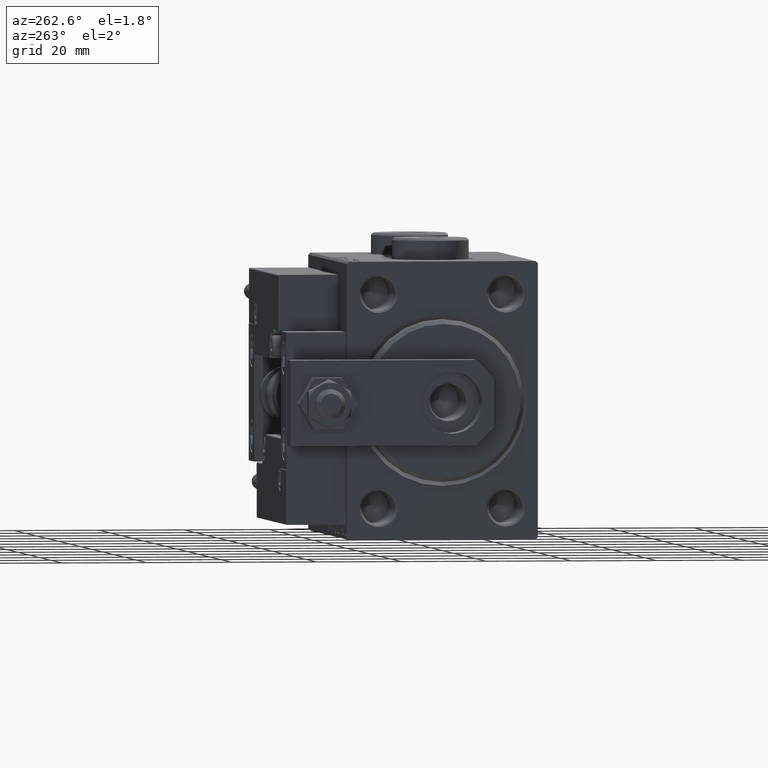
[diagram: clean part render]
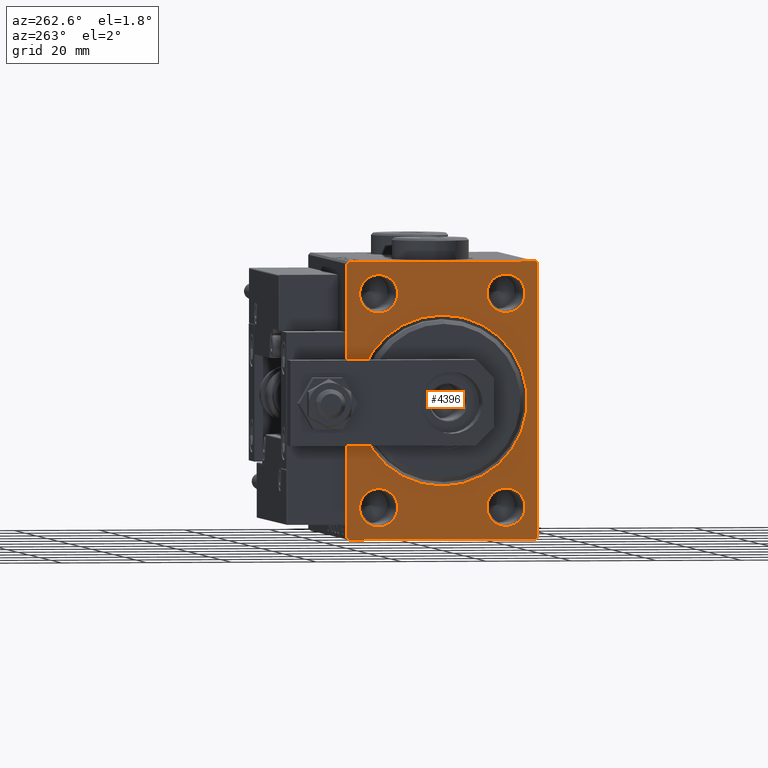
[diagram: same view with one face highlighted and labeled with its STEP entity id]
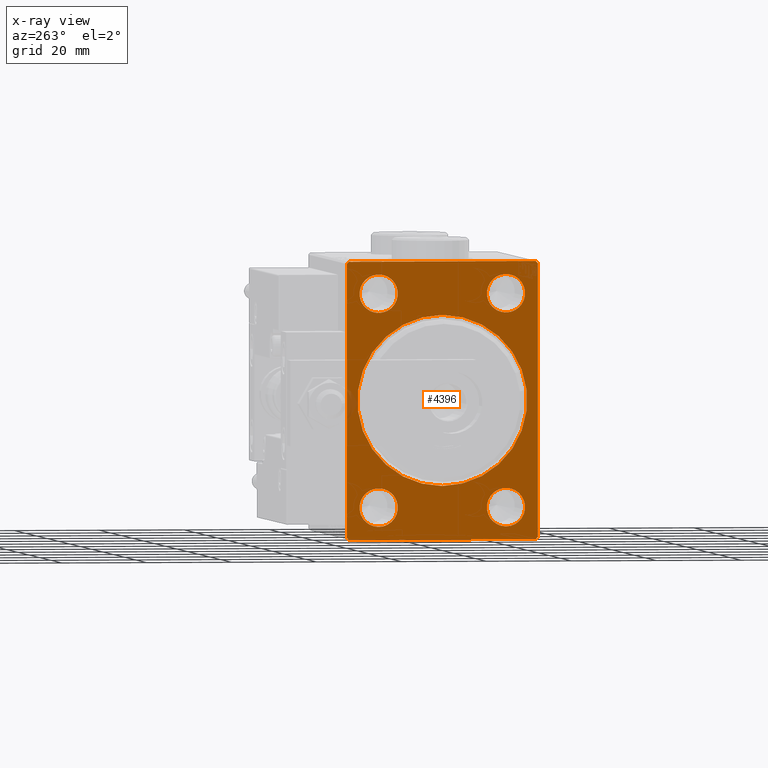
[diagram: x-ray of the same camera — body ghosted, the highlighted face saturated]
A machine part, auxiliary view. The second image highlights one B-rep face of the part: STEP entity #4396.
The next image is the same camera in x-ray: the body ghosted, the highlighted face saturated — about 1% of this face is hidden behind the body in this view.
In plain terms, the highlighted planar face has unit normal (1, 0, 0).
Its self-contained STEP definition (entity closure, byte-faithful):
#219 = DIRECTION ( 'NONE',  ( 0.000000000000000000, -0.7071067811865376918, -0.7071067811865574537 ) ) ;
#305 = VERTEX_POINT ( 'NONE', #10309 ) ;
#468 = CARTESIAN_POINT ( 'NONE',  ( 0.000000000000000000, 0.000000000000000000, 20.00000000000000355 ) ) ;
#886 = CARTESIAN_POINT ( 'NONE',  ( 0.000000000000000000, 21.99999999999998579, 32.49999999999999289 ) ) ;
#893 = ORIENTED_EDGE ( 'NONE', *, *, #48700, .T. ) ;
#1963 = AXIS2_PLACEMENT_3D ( 'NONE', #25340, #13118, #29828 ) ;
#2741 = DIRECTION ( 'NONE',  ( 0.000000000000000000, 0.000000000000000000, -1.000000000000000000 ) ) ;
#3229 = DIRECTION ( 'NONE',  ( 1.000000000000000000, 0.000000000000000000, 0.000000000000000000 ) ) ;
#3787 = CARTESIAN_POINT ( 'NONE',  ( 0.000000000000000000, -15.00000000000000000, -25.00000000000000000 ) ) ;
#4241 = CIRCLE ( 'NONE', #48375, 4.499999999999976019 ) ;
#4335 = DIRECTION ( 'NONE',  ( 0.000000000000000000, 0.000000000000000000, -1.000000000000000000 ) ) ;
#4396 = ADVANCED_FACE ( 'NONE', ( #11193, #47880, #24209, #7482, #40426, #43622 ), #51597, .F. ) ;
#5280 = CARTESIAN_POINT ( 'NONE',  ( 0.000000000000000000, 22.50000000000000711, -31.99999999999999289 ) ) ;
#5309 = ORIENTED_EDGE ( 'NONE', *, *, #51536, .T. ) ;
#6266 = DIRECTION ( 'NONE',  ( 0.000000000000000000, 0.000000000000000000, -1.000000000000000000 ) ) ;
#6607 = EDGE_CURVE ( 'NONE', #49748, #17038, #45542, .T. ) ;
#6611 = ORIENTED_EDGE ( 'NONE', *, *, #21702, .F. ) ;
#6774 = AXIS2_PLACEMENT_3D ( 'NONE', #18966, #12032, #2741 ) ;
#6821 = VERTEX_POINT ( 'NONE', #26977 ) ;
#6984 = DIRECTION ( 'NONE',  ( 0.000000000000000000, 0.000000000000000000, -1.000000000000000000 ) ) ;
#7044 = AXIS2_PLACEMENT_3D ( 'NONE', #32671, #12504, #48652 ) ;
#7482 = FACE_BOUND ( 'NONE', #37914, .T. ) ;
#7796 = CARTESIAN_POINT ( 'NONE',  ( 0.000000000000000000, 22.50000000000000711, -31.99999999999999289 ) ) ;
#8368 = ORIENTED_EDGE ( 'NONE', *, *, #12112, .F. ) ;
#8889 = DIRECTION ( 'NONE',  ( 0.000000000000000000, 0.000000000000000000, -1.000000000000000000 ) ) ;
#9061 = CARTESIAN_POINT ( 'NONE',  ( 0.000000000000000000, 2.449293598294706907E-15, -20.00000000000000355 ) ) ;
#9627 = CARTESIAN_POINT ( 'NONE',  ( 0.000000000000000000, 0.000000000000000000, 0.000000000000000000 ) ) ;
#9785 = EDGE_LOOP ( 'NONE', ( #893, #32665 ) ) ;
#9970 = CARTESIAN_POINT ( 'NONE',  ( 0.000000000000000000, -22.49999999999999289, -32.50000000000000711 ) ) ;
#10309 = CARTESIAN_POINT ( 'NONE',  ( 0.000000000000000000, -15.00000000000000000, -20.50000000000002487 ) ) ;
#10538 = CIRCLE ( 'NONE', #37707, 4.499999999999976019 ) ;
#11193 = FACE_BOUND ( 'NONE', #23097, .T. ) ;
#11422 = VERTEX_POINT ( 'NONE', #23885 ) ;
#11458 = DIRECTION ( 'NONE',  ( 0.000000000000000000, 0.000000000000000000, -1.000000000000000000 ) ) ;
#11474 = ORIENTED_EDGE ( 'NONE', *, *, #12398, .T. ) ;
#12032 = DIRECTION ( 'NONE',  ( 1.000000000000000000, 0.000000000000000000, 0.000000000000000000 ) ) ;
#12112 = EDGE_CURVE ( 'NONE', #42776, #6821, #34661, .T. ) ;
#12380 = EDGE_CURVE ( 'NONE', #38562, #38373, #21016, .T. ) ;
#12398 = EDGE_CURVE ( 'NONE', #24347, #11422, #29949, .T. ) ;
#12504 = DIRECTION ( 'NONE',  ( 1.000000000000000000, 0.000000000000000000, 0.000000000000000000 ) ) ;
#12814 = CARTESIAN_POINT ( 'NONE',  ( 0.000000000000000000, -22.49999999999999289, 31.99999999999998579 ) ) ;
#13118 = DIRECTION ( 'NONE',  ( 1.000000000000000000, 0.000000000000000000, 0.000000000000000000 ) ) ;
#13233 = EDGE_CURVE ( 'NONE', #34242, #45928, #35699, .T. ) ;
#13331 = EDGE_LOOP ( 'NONE', ( #44713, #45895, #25334, #35023, #6611, #28718, #8368, #38554 ) ) ;
#13520 = VERTEX_POINT ( 'NONE', #9061 ) ;
#13699 = DIRECTION ( 'NONE',  ( 0.000000000000000000, 1.000000000000000000, 0.000000000000000000 ) ) ;
#14153 = VECTOR ( 'NONE', #31443, 1000.000000000000000 ) ;
#14436 = CARTESIAN_POINT ( 'NONE',  ( 0.000000000000000000, 15.00000000000000178, 25.00000000000000000 ) ) ;
#14917 = EDGE_CURVE ( 'NONE', #17038, #49748, #10538, .T. ) ;
#15525 = CIRCLE ( 'NONE', #1963, 4.499999999999976019 ) ;
#15851 = CARTESIAN_POINT ( 'NONE',  ( 0.000000000000000000, -15.00000000000000000, 29.49999999999997868 ) ) ;
#15946 = EDGE_LOOP ( 'NONE', ( #45128, #11474 ) ) ;
#16192 = CIRCLE ( 'NONE', #33151, 20.00000000000000355 ) ;
#16385 = EDGE_CURVE ( 'NONE', #25236, #305, #47083, .T. ) ;
#16838 = DIRECTION ( 'NONE',  ( 1.000000000000000000, 0.000000000000000000, 0.000000000000000000 ) ) ;
#17038 = VERTEX_POINT ( 'NONE', #30265 ) ;
#17098 = LINE ( 'NONE', #32762, #31601 ) ;
#17240 = LINE ( 'NONE', #5280, #21550 ) ;
#17730 = DIRECTION ( 'NONE',  ( 0.000000000000000000, 0.000000000000000000, -1.000000000000000000 ) ) ;
#17766 = ORIENTED_EDGE ( 'NONE', *, *, #41412, .T. ) ;
#18432 = DIRECTION ( 'NONE',  ( 0.000000000000000000, 0.000000000000000000, -1.000000000000000000 ) ) ;
#18926 = VECTOR ( 'NONE', #48921, 1000.000000000000000 ) ;
#18966 = CARTESIAN_POINT ( 'NONE',  ( 0.000000000000000000, 0.000000000000000000, 0.000000000000000000 ) ) ;
#20003 = EDGE_CURVE ( 'NONE', #42776, #38373, #25226, .T. ) ;
#20644 = VECTOR ( 'NONE', #41019, 999.9999999999998863 ) ;
#21016 = LINE ( 'NONE', #37205, #18926 ) ;
#21134 = DIRECTION ( 'NONE',  ( 1.000000000000000000, 0.000000000000000000, 0.000000000000000000 ) ) ;
#21357 = DIRECTION ( 'NONE',  ( -0.000000000000000000, 0.7071067811865474617, 0.7071067811865474617 ) ) ;
#21395 = CARTESIAN_POINT ( 'NONE',  ( 0.000000000000000000, 21.99999999999998579, 32.49999999999999289 ) ) ;
#21470 = CARTESIAN_POINT ( 'NONE',  ( 0.000000000000000000, 15.00000000000000178, 25.00000000000000000 ) ) ;
#21550 = VECTOR ( 'NONE', #219, 999.9999999999998863 ) ;
#21702 = EDGE_CURVE ( 'NONE', #47659, #45928, #27196, .T. ) ;
#21972 = CARTESIAN_POINT ( 'NONE',  ( 0.000000000000000000, -15.00000000000000000, 25.00000000000000000 ) ) ;
#22222 = CARTESIAN_POINT ( 'NONE',  ( 0.000000000000000000, -22.49999999999999289, -32.00000000000001421 ) ) ;
#23097 = EDGE_LOOP ( 'NONE', ( #31877, #17766 ) ) ;
#23753 = AXIS2_PLACEMENT_3D ( 'NONE', #40519, #21134, #8889 ) ;
#23882 = VERTEX_POINT ( 'NONE', #468 ) ;
#23885 = CARTESIAN_POINT ( 'NONE',  ( 0.000000000000000000, 15.00000000000000178, -20.50000000000002487 ) ) ;
#24209 = FACE_BOUND ( 'NONE', #28333, .T. ) ;
#24347 = VERTEX_POINT ( 'NONE', #26172 ) ;
#25218 = CARTESIAN_POINT ( 'NONE',  ( 0.000000000000000000, 22.50000000000000000, 32.49999999999999289 ) ) ;
#25226 = LINE ( 'NONE', #33715, #48914 ) ;
#25236 = VERTEX_POINT ( 'NONE', #35042 ) ;
#25334 = ORIENTED_EDGE ( 'NONE', *, *, #32761, .F. ) ;
#25340 = CARTESIAN_POINT ( 'NONE',  ( 0.000000000000000000, -15.00000000000000000, -25.00000000000000000 ) ) ;
#26172 = CARTESIAN_POINT ( 'NONE',  ( 0.000000000000000000, 15.00000000000000178, -29.49999999999997868 ) ) ;
#26977 = CARTESIAN_POINT ( 'NONE',  ( 0.000000000000000000, 21.99999999999999289, -32.50000000000000711 ) ) ;
#27196 = LINE ( 'NONE', #30667, #14153 ) ;
#27230 = CARTESIAN_POINT ( 'NONE',  ( 0.000000000000000000, 15.00000000000000178, 20.50000000000002487 ) ) ;
#27384 = CIRCLE ( 'NONE', #41839, 4.499999999999976019 ) ;
#28333 = EDGE_LOOP ( 'NONE', ( #37036, #30467 ) ) ;
#28718 = ORIENTED_EDGE ( 'NONE', *, *, #50631, .T. ) ;
#29828 = DIRECTION ( 'NONE',  ( 0.000000000000000000, 0.000000000000000000, -1.000000000000000000 ) ) ;
#29949 = CIRCLE ( 'NONE', #7044, 4.499999999999976019 ) ;
#30105 = VERTEX_POINT ( 'NONE', #41829 ) ;
#30265 = CARTESIAN_POINT ( 'NONE',  ( 0.000000000000000000, -15.00000000000000000, 20.50000000000002487 ) ) ;
#30467 = ORIENTED_EDGE ( 'NONE', *, *, #14917, .T. ) ;
#30667 = CARTESIAN_POINT ( 'NONE',  ( 0.000000000000000000, 22.50000000000000711, -32.50000000000000711 ) ) ;
#31443 = DIRECTION ( 'NONE',  ( 0.000000000000000000, -1.067522139062650425E-16, 1.000000000000000000 ) ) ;
#31601 = VECTOR ( 'NONE', #21357, 1000.000000000000114 ) ;
#31756 = AXIS2_PLACEMENT_3D ( 'NONE', #3787, #36204, #6984 ) ;
#31877 = ORIENTED_EDGE ( 'NONE', *, *, #43275, .T. ) ;
#32645 = LINE ( 'NONE', #25218, #34795 ) ;
#32665 = ORIENTED_EDGE ( 'NONE', *, *, #16385, .T. ) ;
#32671 = CARTESIAN_POINT ( 'NONE',  ( 0.000000000000000000, 15.00000000000000178, -25.00000000000000000 ) ) ;
#32761 = EDGE_CURVE ( 'NONE', #34242, #30105, #32645, .T. ) ;
#32762 = CARTESIAN_POINT ( 'NONE',  ( 0.000000000000000000, -22.49999999999999289, 31.99999999999998579 ) ) ;
#32885 = DIRECTION ( 'NONE',  ( 1.000000000000000000, 0.000000000000000000, 0.000000000000000000 ) ) ;
#33151 = AXIS2_PLACEMENT_3D ( 'NONE', #9627, #16838, #4335 ) ;
#33715 = CARTESIAN_POINT ( 'NONE',  ( 0.000000000000000000, -21.99999999999999289, -32.50000000000000711 ) ) ;
#33940 = CIRCLE ( 'NONE', #23753, 4.499999999999976019 ) ;
#34242 = VERTEX_POINT ( 'NONE', #21395 ) ;
#34661 = LINE ( 'NONE', #9970, #43502 ) ;
#34795 = VECTOR ( 'NONE', #36907, 1000.000000000000000 ) ;
#35023 = ORIENTED_EDGE ( 'NONE', *, *, #13233, .T. ) ;
#35042 = CARTESIAN_POINT ( 'NONE',  ( 0.000000000000000000, -15.00000000000000000, -29.49999999999997868 ) ) ;
#35699 = LINE ( 'NONE', #886, #20644 ) ;
#36060 = CARTESIAN_POINT ( 'NONE',  ( 0.000000000000000000, -15.00000000000000000, 25.00000000000000000 ) ) ;
#36204 = DIRECTION ( 'NONE',  ( 1.000000000000000000, 0.000000000000000000, 0.000000000000000000 ) ) ;
#36676 = CARTESIAN_POINT ( 'NONE',  ( 0.000000000000000000, -21.99999999999999289, -32.50000000000000711 ) ) ;
#36892 = AXIS2_PLACEMENT_3D ( 'NONE', #39635, #3229, #11458 ) ;
#36907 = DIRECTION ( 'NONE',  ( 0.000000000000000000, -1.000000000000000000, -1.541976423090495633E-16 ) ) ;
#37036 = ORIENTED_EDGE ( 'NONE', *, *, #6607, .T. ) ;
#37205 = CARTESIAN_POINT ( 'NONE',  ( 0.000000000000000000, -22.49999999999999289, 32.49999999999998579 ) ) ;
#37707 = AXIS2_PLACEMENT_3D ( 'NONE', #21972, #42670, #6266 ) ;
#37914 = EDGE_LOOP ( 'NONE', ( #45757, #5309 ) ) ;
#38190 = CIRCLE ( 'NONE', #6774, 20.00000000000000355 ) ;
#38373 = VERTEX_POINT ( 'NONE', #22222 ) ;
#38554 = ORIENTED_EDGE ( 'NONE', *, *, #20003, .T. ) ;
#38562 = VERTEX_POINT ( 'NONE', #12814 ) ;
#39290 = EDGE_CURVE ( 'NONE', #11422, #24347, #33940, .T. ) ;
#39525 = DIRECTION ( 'NONE',  ( 0.000000000000000000, 0.000000000000000000, -1.000000000000000000 ) ) ;
#39635 = CARTESIAN_POINT ( 'NONE',  ( 0.000000000000000000, 0.000000000000000000, 0.000000000000000000 ) ) ;
#40426 = FACE_BOUND ( 'NONE', #15946, .T. ) ;
#40519 = CARTESIAN_POINT ( 'NONE',  ( 0.000000000000000000, 15.00000000000000178, -25.00000000000000000 ) ) ;
#40791 = VERTEX_POINT ( 'NONE', #51767 ) ;
#41019 = DIRECTION ( 'NONE',  ( -0.000000000000000000, 0.7071067811865574537, -0.7071067811865376918 ) ) ;
#41281 = AXIS2_PLACEMENT_3D ( 'NONE', #36060, #48308, #39525 ) ;
#41412 = EDGE_CURVE ( 'NONE', #13520, #23882, #38190, .T. ) ;
#41829 = CARTESIAN_POINT ( 'NONE',  ( 0.000000000000000000, -21.99999999999997868, 32.49999999999998579 ) ) ;
#41839 = AXIS2_PLACEMENT_3D ( 'NONE', #14436, #45830, #18432 ) ;
#41936 = EDGE_CURVE ( 'NONE', #40791, #51894, #4241, .T. ) ;
#42670 = DIRECTION ( 'NONE',  ( 1.000000000000000000, 0.000000000000000000, 0.000000000000000000 ) ) ;
#42776 = VERTEX_POINT ( 'NONE', #36676 ) ;
#43275 = EDGE_CURVE ( 'NONE', #23882, #13520, #16192, .T. ) ;
#43502 = VECTOR ( 'NONE', #13699, 1000.000000000000000 ) ;
#43622 = FACE_OUTER_BOUND ( 'NONE', #13331, .T. ) ;
#44713 = ORIENTED_EDGE ( 'NONE', *, *, #12380, .F. ) ;
#45128 = ORIENTED_EDGE ( 'NONE', *, *, #39290, .T. ) ;
#45542 = CIRCLE ( 'NONE', #41281, 4.499999999999976019 ) ;
#45757 = ORIENTED_EDGE ( 'NONE', *, *, #41936, .T. ) ;
#45830 = DIRECTION ( 'NONE',  ( 1.000000000000000000, 0.000000000000000000, 0.000000000000000000 ) ) ;
#45895 = ORIENTED_EDGE ( 'NONE', *, *, #47732, .T. ) ;
#45928 = VERTEX_POINT ( 'NONE', #46993 ) ;
#46993 = CARTESIAN_POINT ( 'NONE',  ( 0.000000000000000000, 22.50000000000000000, 31.99999999999999289 ) ) ;
#47083 = CIRCLE ( 'NONE', #31756, 4.499999999999976019 ) ;
#47659 = VERTEX_POINT ( 'NONE', #7796 ) ;
#47732 = EDGE_CURVE ( 'NONE', #38562, #30105, #17098, .T. ) ;
#47880 = FACE_BOUND ( 'NONE', #9785, .T. ) ;
#48308 = DIRECTION ( 'NONE',  ( 1.000000000000000000, 0.000000000000000000, 0.000000000000000000 ) ) ;
#48375 = AXIS2_PLACEMENT_3D ( 'NONE', #21470, #32885, #17730 ) ;
#48652 = DIRECTION ( 'NONE',  ( 0.000000000000000000, 0.000000000000000000, -1.000000000000000000 ) ) ;
#48700 = EDGE_CURVE ( 'NONE', #305, #25236, #15525, .T. ) ;
#48914 = VECTOR ( 'NONE', #49947, 1000.000000000000000 ) ;
#48921 = DIRECTION ( 'NONE',  ( 0.000000000000000000, 0.000000000000000000, -1.000000000000000000 ) ) ;
#49748 = VERTEX_POINT ( 'NONE', #15851 ) ;
#49947 = DIRECTION ( 'NONE',  ( -0.000000000000000000, -0.7071067811865524577, 0.7071067811865426878 ) ) ;
#50631 = EDGE_CURVE ( 'NONE', #47659, #6821, #17240, .T. ) ;
#51536 = EDGE_CURVE ( 'NONE', #51894, #40791, #27384, .T. ) ;
#51597 = PLANE ( 'NONE',  #36892 ) ;
#51767 = CARTESIAN_POINT ( 'NONE',  ( 0.000000000000000000, 15.00000000000000178, 29.49999999999997868 ) ) ;
#51894 = VERTEX_POINT ( 'NONE', #27230 ) ;